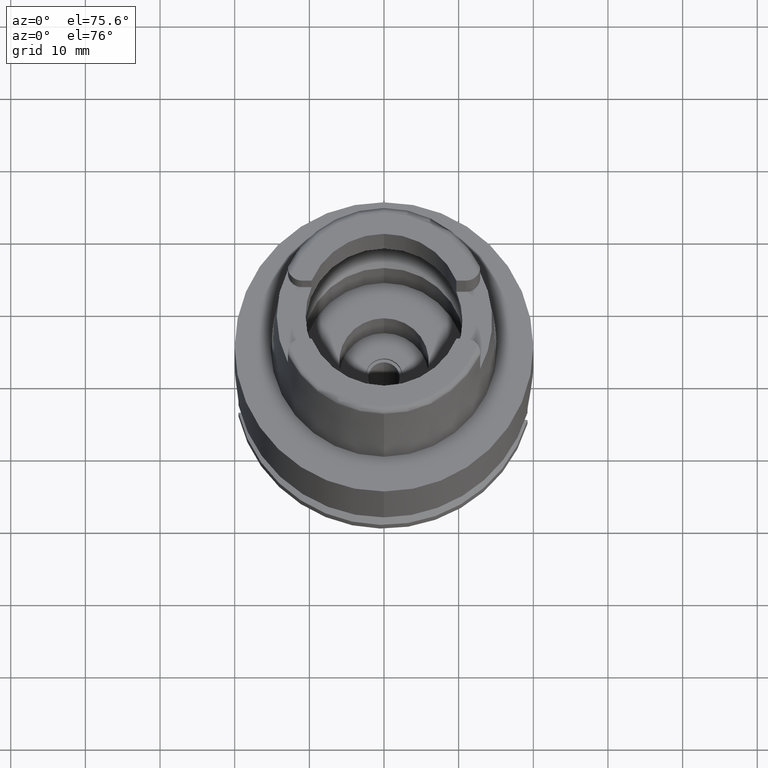
[diagram: clean part render]
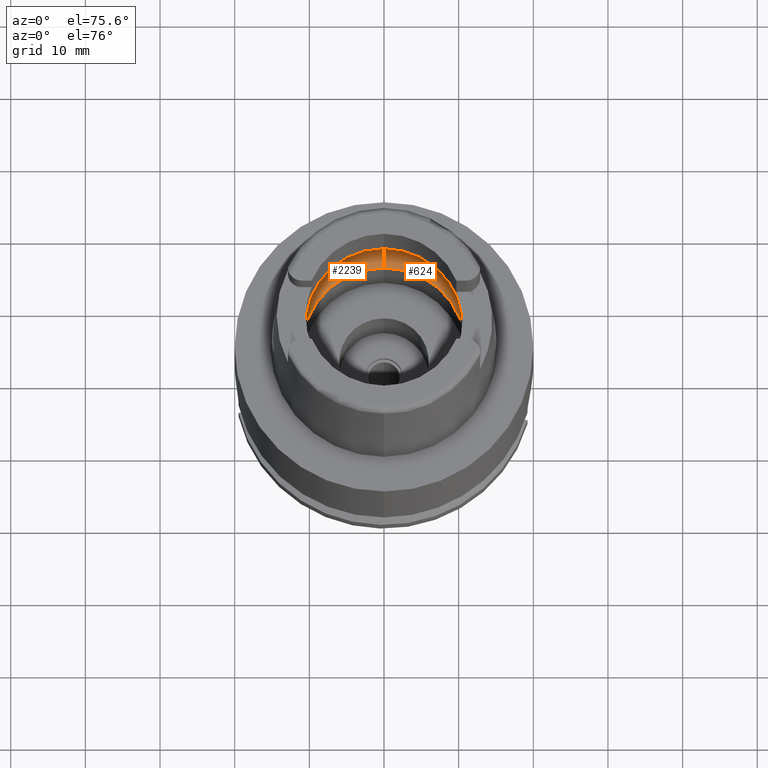
[diagram: same view with one multi-face feature highlighted, each face labeled with its STEP entity id]
A machine part, auxiliary view. The highlighted faces form ONE feature: a constant-radius fillet chain: 2 tangent blend faces with common blend radius 5 mm. The faces share edges in the B-rep.
Their STEP definitions:
[1] entity #2239 (Torus):
#18 = B_SPLINE_CURVE_WITH_KNOTS ( 'NONE', 3,
 ( #147, #3929, #3149, #1025, #3517, #4824 ),
 .UNSPECIFIED., .F., .F.,
 ( 4, 1, 1, 4 ),
 ( 0.0000000000000000000, 0.3333333333333000081, 0.6666666666667000474, 1.000000000000000000 ),
 .UNSPECIFIED. ) ;
#40 = EDGE_CURVE ( 'NONE', #496, #55, #5030, .T. ) ;
#55 = VERTEX_POINT ( 'NONE', #938 ) ;
#147 = CARTESIAN_POINT ( 'NONE',  ( -12.70998420979999999, -1.009356917307000057, 3.933312163512999504 ) ) ;
#292 = DIRECTION ( 'NONE',  ( 0.0000000000000000000, 0.6299999999999791322, -0.7765951326141738997 ) ) ;
#412 = AXIS2_PLACEMENT_3D ( 'NONE', #3992, #1138, #3186 ) ;
#496 = VERTEX_POINT ( 'NONE', #1397 ) ;
#635 = FACE_OUTER_BOUND ( 'NONE', #4242, .T. ) ;
#706 = AXIS2_PLACEMENT_3D ( 'NONE', #3016, #1004, #4270 ) ;
#892 = VERTEX_POINT ( 'NONE', #1711 ) ;
#938 = CARTESIAN_POINT ( 'NONE',  ( 0.0000000000000000000, 12.75000000000000000, 3.933312163512999504 ) ) ;
#977 = CARTESIAN_POINT ( 'NONE',  ( -12.71822750039000027, 0.9055560800185999959, 3.882616508711999703 ) ) ;
#997 = CARTESIAN_POINT ( 'NONE',  ( 0.0000000000000000000, 1.272815980657999902E-14, 3.933312163512999504 ) ) ;
#1004 = DIRECTION ( 'NONE',  ( -1.000000000000000000, 0.0000000000000000000, 0.0000000000000000000 ) ) ;
#1025 = CARTESIAN_POINT ( 'NONE',  ( -12.74221194267000001, -0.3492494412618999955, 3.717724215759000028 ) ) ;
#1138 = DIRECTION ( 'NONE',  ( 0.0000000000000000000, 0.0000000000000000000, -1.000000000000000000 ) ) ;
#1250 = CARTESIAN_POINT ( 'NONE',  ( -12.70998420979999999, -1.009356917307000057, 3.933312163512999504 ) ) ;
#1397 = CARTESIAN_POINT ( 'NONE',  ( -12.70998420979999999, 1.009356917307999923, 3.933312163512999504 ) ) ;
#1484 = ORIENTED_EDGE ( 'NONE', *, *, #2328, .F. ) ;
#1517 = CARTESIAN_POINT ( 'NONE',  ( 0.0000000000000000000, 10.90000000000000036, 0.05033650044222000297 ) ) ;
#1540 = CIRCLE ( 'NONE', #412, 12.75000000000000000 ) ;
#1711 = CARTESIAN_POINT ( 'NONE',  ( 0.0000000000000000000, -12.75000000000000000, 3.933312163512999504 ) ) ;
#1850 = EDGE_CURVE ( 'NONE', #5370, #55, #3768, .T. ) ;
#1871 = ORIENTED_EDGE ( 'NONE', *, *, #40, .F. ) ;
#1900 = AXIS2_PLACEMENT_3D ( 'NONE', #3133, #5007, #4432 ) ;
#2210 = EDGE_CURVE ( 'NONE', #3269, #496, #5254, .T. ) ;
#2239 = ADVANCED_FACE ( 'NONE', ( #635 ), #3117, .F. ) ;
#2253 = CARTESIAN_POINT ( 'NONE',  ( -12.70998420979999999, 1.009356917307999923, 3.933312163512999504 ) ) ;
#2328 = EDGE_CURVE ( 'NONE', #892, #5180, #1540, .T. ) ;
#2345 = CIRCLE ( 'NONE', #706, 5.000000000000000888 ) ;
#2382 = CARTESIAN_POINT ( 'NONE',  ( 0.0000000000000000000, 7.750000000000000000, 3.933312163512999504 ) ) ;
#2515 = CIRCLE ( 'NONE', #4029, 10.90000000000000036 ) ;
#2624 = CARTESIAN_POINT ( 'NONE',  ( 0.0000000000000000000, 1.272815980657999902E-14, 0.05033650044222000297 ) ) ;
#2649 = DIRECTION ( 'NONE',  ( 0.0000000000000000000, 1.000000000000000000, 0.0000000000000000000 ) ) ;
#2897 = VERTEX_POINT ( 'NONE', #4870 ) ;
#3016 = CARTESIAN_POINT ( 'NONE',  ( 0.0000000000000000000, -7.750000000000000000, 3.933312163512999504 ) ) ;
#3049 = CARTESIAN_POINT ( 'NONE',  ( -12.74455357708000136, 0.1165095118199000052, 3.700000000000000178 ) ) ;
#3117 = TOROIDAL_SURFACE ( 'NONE', #1900, 7.750000000000000000, 5.000000000000000000 ) ;
#3133 = CARTESIAN_POINT ( 'NONE',  ( 0.0000000000000000000, 1.272815980657999902E-14, 3.933312163512999504 ) ) ;
#3149 = CARTESIAN_POINT ( 'NONE',  ( -12.73125904559999988, -0.6899170685655999780, 3.796695516230999878 ) ) ;
#3186 = DIRECTION ( 'NONE',  ( 0.0000000000000000000, -1.000000000000000000, 0.0000000000000000000 ) ) ;
#3269 = VERTEX_POINT ( 'NONE', #5369 ) ;
#3441 = CARTESIAN_POINT ( 'NONE',  ( -12.74221162530000129, 0.3492624308046999859, 3.717726546203000026 ) ) ;
#3469 = AXIS2_PLACEMENT_3D ( 'NONE', #997, #4687, #4318 ) ;
#3517 = CARTESIAN_POINT ( 'NONE',  ( -12.74455357708000136, -0.1165037945274000064, 3.700000000000000178 ) ) ;
#3550 = ORIENTED_EDGE ( 'NONE', *, *, #1850, .T. ) ;
#3768 = CIRCLE ( 'NONE', #4813, 5.000000000000000888 ) ;
#3856 = CARTESIAN_POINT ( 'NONE',  ( -12.74455357708000136, 0.0000000000000000000, 3.700000000000000178 ) ) ;
#3929 = CARTESIAN_POINT ( 'NONE',  ( -12.71822740498000215, -0.9055572814202000886, 3.882617095469000024 ) ) ;
#3992 = CARTESIAN_POINT ( 'NONE',  ( 0.0000000000000000000, 1.272815980657999902E-14, 3.933312163512999504 ) ) ;
#4029 = AXIS2_PLACEMENT_3D ( 'NONE', #2624, #4315, #2649 ) ;
#4127 = DIRECTION ( 'NONE',  ( 1.000000000000000000, 0.0000000000000000000, 0.0000000000000000000 ) ) ;
#4242 = EDGE_LOOP ( 'NONE', ( #1484, #4288, #4923, #3550, #1871, #4441, #4921 ) ) ;
#4270 = DIRECTION ( 'NONE',  ( 0.0000000000000000000, -0.6299999999999791322, -0.7765951326141738997 ) ) ;
#4288 = ORIENTED_EDGE ( 'NONE', *, *, #4794, .F. ) ;
#4315 = DIRECTION ( 'NONE',  ( 0.0000000000000000000, 0.0000000000000000000, 1.000000000000000000 ) ) ;
#4318 = DIRECTION ( 'NONE',  ( -0.9968615066513395462, 0.07916524841634305087, 0.0000000000000000000 ) ) ;
#4432 = DIRECTION ( 'NONE',  ( 0.0000000000000000000, -1.000000000000000000, 0.0000000000000000000 ) ) ;
#4441 = ORIENTED_EDGE ( 'NONE', *, *, #2210, .F. ) ;
#4687 = DIRECTION ( 'NONE',  ( 0.0000000000000000000, 0.0000000000000000000, -1.000000000000000000 ) ) ;
#4794 = EDGE_CURVE ( 'NONE', #2897, #892, #2345, .T. ) ;
#4813 = AXIS2_PLACEMENT_3D ( 'NONE', #2382, #4127, #292 ) ;
#4824 = CARTESIAN_POINT ( 'NONE',  ( -12.74455357708000136, 0.0000000000000000000, 3.700000000000000178 ) ) ;
#4870 = CARTESIAN_POINT ( 'NONE',  ( 0.0000000000000000000, -10.90000000000000036, 0.05033650044222000297 ) ) ;
#4921 = ORIENTED_EDGE ( 'NONE', *, *, #5082, .F. ) ;
#4923 = ORIENTED_EDGE ( 'NONE', *, *, #5056, .F. ) ;
#5007 = DIRECTION ( 'NONE',  ( 0.0000000000000000000, 0.0000000000000000000, -1.000000000000000000 ) ) ;
#5030 = CIRCLE ( 'NONE', #3469, 12.75000000000000533 ) ;
#5056 = EDGE_CURVE ( 'NONE', #5370, #2897, #2515, .T. ) ;
#5082 = EDGE_CURVE ( 'NONE', #5180, #3269, #18, .T. ) ;
#5180 = VERTEX_POINT ( 'NONE', #1250 ) ;
#5187 = CARTESIAN_POINT ( 'NONE',  ( -12.73125908545999962, 0.6899141010797000817, 3.796695173512999677 ) ) ;
#5254 = B_SPLINE_CURVE_WITH_KNOTS ( 'NONE', 3,
 ( #3856, #3049, #3441, #5187, #977, #2253 ),
 .UNSPECIFIED., .F., .F.,
 ( 4, 1, 1, 4 ),
 ( 0.0000000000000000000, 0.3333333333333000081, 0.6666666666667000474, 1.000000000000000000 ),
 .UNSPECIFIED. ) ;
#5369 = CARTESIAN_POINT ( 'NONE',  ( -12.74455357708000136, 0.0000000000000000000, 3.700000000000000178 ) ) ;
#5370 = VERTEX_POINT ( 'NONE', #1517 ) ;
[2] entity #624 (Torus):
#55 = VERTEX_POINT ( 'NONE', #938 ) ;
#71 = ORIENTED_EDGE ( 'NONE', *, *, #1999, .F. ) ;
#292 = DIRECTION ( 'NONE',  ( 0.0000000000000000000, 0.6299999999999791322, -0.7765951326141738997 ) ) ;
#335 = AXIS2_PLACEMENT_3D ( 'NONE', #1221, #3358, #4245 ) ;
#402 = ORIENTED_EDGE ( 'NONE', *, *, #3010, .F. ) ;
#528 = CARTESIAN_POINT ( 'NONE',  ( 0.0000000000000000000, 1.272815980657999902E-14, 3.933312163512999504 ) ) ;
#593 = VERTEX_POINT ( 'NONE', #4312 ) ;
#624 = ADVANCED_FACE ( 'NONE', ( #2240 ), #2045, .F. ) ;
#706 = AXIS2_PLACEMENT_3D ( 'NONE', #3016, #1004, #4270 ) ;
#740 = EDGE_LOOP ( 'NONE', ( #402, #3317, #1344, #3692, #1337, #1874, #71 ) ) ;
#831 = AXIS2_PLACEMENT_3D ( 'NONE', #2559, #1281, #2945 ) ;
#864 = CARTESIAN_POINT ( 'NONE',  ( 12.74221191776999973, -0.3492506651152000319, 3.717724400314000199 ) ) ;
#892 = VERTEX_POINT ( 'NONE', #1711 ) ;
#917 = CARTESIAN_POINT ( 'NONE',  ( 12.70998420979999999, -1.009356917307999923, 3.933312163512999504 ) ) ;
#921 = CARTESIAN_POINT ( 'NONE',  ( 12.71822738654000062, -0.9055575135700999478, 3.882617208849000079 ) ) ;
#938 = CARTESIAN_POINT ( 'NONE',  ( 0.0000000000000000000, 12.75000000000000000, 3.933312163512999504 ) ) ;
#1004 = DIRECTION ( 'NONE',  ( -1.000000000000000000, 0.0000000000000000000, 0.0000000000000000000 ) ) ;
#1221 = CARTESIAN_POINT ( 'NONE',  ( 0.0000000000000000000, 1.272815980657999902E-14, 0.05033650044222000297 ) ) ;
#1228 = CARTESIAN_POINT ( 'NONE',  ( 12.70998420979999999, 1.009356917307000057, 3.933312163512999504 ) ) ;
#1244 = CARTESIAN_POINT ( 'NONE',  ( 12.70998420979999999, -1.009356917307999923, 3.933312163512999504 ) ) ;
#1251 = CARTESIAN_POINT ( 'NONE',  ( 12.71822751822999997, 0.9055558553350999684, 3.882616398978000039 ) ) ;
#1281 = DIRECTION ( 'NONE',  ( 0.0000000000000000000, 0.0000000000000000000, -1.000000000000000000 ) ) ;
#1337 = ORIENTED_EDGE ( 'NONE', *, *, #4794, .T. ) ;
#1344 = ORIENTED_EDGE ( 'NONE', *, *, #1850, .F. ) ;
#1489 = VERTEX_POINT ( 'NONE', #917 ) ;
#1517 = CARTESIAN_POINT ( 'NONE',  ( 0.0000000000000000000, 10.90000000000000036, 0.05033650044222000297 ) ) ;
#1711 = CARTESIAN_POINT ( 'NONE',  ( 0.0000000000000000000, -12.75000000000000000, 3.933312163512999504 ) ) ;
#1743 = CARTESIAN_POINT ( 'NONE',  ( 12.74455357708000136, 0.1165089222837000088, 3.700000000000000178 ) ) ;
#1850 = EDGE_CURVE ( 'NONE', #5370, #55, #3768, .T. ) ;
#1874 = ORIENTED_EDGE ( 'NONE', *, *, #3045, .F. ) ;
#1999 = EDGE_CURVE ( 'NONE', #593, #1489, #4146, .T. ) ;
#2045 = TOROIDAL_SURFACE ( 'NONE', #831, 7.750000000000000000, 5.000000000000000000 ) ;
#2156 = CARTESIAN_POINT ( 'NONE',  ( 12.74455357708000136, 0.0000000000000000000, 3.700000000000000178 ) ) ;
#2158 = CIRCLE ( 'NONE', #3740, 12.75000000000000533 ) ;
#2240 = FACE_OUTER_BOUND ( 'NONE', #740, .T. ) ;
#2345 = CIRCLE ( 'NONE', #706, 5.000000000000000888 ) ;
#2382 = CARTESIAN_POINT ( 'NONE',  ( 0.0000000000000000000, 7.750000000000000000, 3.933312163512999504 ) ) ;
#2559 = CARTESIAN_POINT ( 'NONE',  ( 0.0000000000000000000, 1.272815980657999902E-14, 3.933312163512999504 ) ) ;
#2688 = CIRCLE ( 'NONE', #335, 10.90000000000000036 ) ;
#2897 = VERTEX_POINT ( 'NONE', #4870 ) ;
#2916 = CARTESIAN_POINT ( 'NONE',  ( 12.73125911752999961, 0.6899135440065999880, 3.796694954122000087 ) ) ;
#2941 = DIRECTION ( 'NONE',  ( 0.0000000000000000000, 1.000000000000000000, 0.0000000000000000000 ) ) ;
#2945 = DIRECTION ( 'NONE',  ( 0.0000000000000000000, -1.000000000000000000, 0.0000000000000000000 ) ) ;
#3010 = EDGE_CURVE ( 'NONE', #3966, #593, #3069, .T. ) ;
#3016 = CARTESIAN_POINT ( 'NONE',  ( 0.0000000000000000000, -7.750000000000000000, 3.933312163512999504 ) ) ;
#3027 = CARTESIAN_POINT ( 'NONE',  ( 12.74221165338000006, 0.3492610745713000120, 3.717726338375999973 ) ) ;
#3036 = CIRCLE ( 'NONE', #3486, 12.75000000000000000 ) ;
#3045 = EDGE_CURVE ( 'NONE', #1489, #892, #2158, .T. ) ;
#3069 = B_SPLINE_CURVE_WITH_KNOTS ( 'NONE', 3,
 ( #5085, #1251, #2916, #3027, #1743, #2156 ),
 .UNSPECIFIED., .F., .F.,
 ( 4, 1, 1, 4 ),
 ( 0.0000000000000000000, 0.3333333333333000081, 0.6666666666667000474, 1.000000000000000000 ),
 .UNSPECIFIED. ) ;
#3317 = ORIENTED_EDGE ( 'NONE', *, *, #3569, .F. ) ;
#3358 = DIRECTION ( 'NONE',  ( 0.0000000000000000000, 0.0000000000000000000, 1.000000000000000000 ) ) ;
#3446 = DIRECTION ( 'NONE',  ( 0.0000000000000000000, 0.0000000000000000000, -1.000000000000000000 ) ) ;
#3486 = AXIS2_PLACEMENT_3D ( 'NONE', #4566, #3446, #2941 ) ;
#3569 = EDGE_CURVE ( 'NONE', #55, #3966, #3036, .T. ) ;
#3691 = EDGE_CURVE ( 'NONE', #2897, #5370, #2688, .T. ) ;
#3692 = ORIENTED_EDGE ( 'NONE', *, *, #3691, .F. ) ;
#3740 = AXIS2_PLACEMENT_3D ( 'NONE', #528, #4706, #4223 ) ;
#3768 = CIRCLE ( 'NONE', #4813, 5.000000000000000888 ) ;
#3826 = CARTESIAN_POINT ( 'NONE',  ( 12.74455357708000136, 0.0000000000000000000, 3.700000000000000178 ) ) ;
#3966 = VERTEX_POINT ( 'NONE', #1228 ) ;
#4127 = DIRECTION ( 'NONE',  ( 1.000000000000000000, 0.0000000000000000000, 0.0000000000000000000 ) ) ;
#4146 = B_SPLINE_CURVE_WITH_KNOTS ( 'NONE', 3,
 ( #3826, #4668, #864, #4994, #921, #1244 ),
 .UNSPECIFIED., .F., .F.,
 ( 4, 1, 1, 4 ),
 ( 0.0000000000000000000, 0.3333333333333000081, 0.6666666666667000474, 1.000000000000000000 ),
 .UNSPECIFIED. ) ;
#4223 = DIRECTION ( 'NONE',  ( 0.9968615066513395462, -0.07916524841634305087, 0.0000000000000000000 ) ) ;
#4245 = DIRECTION ( 'NONE',  ( 0.0000000000000000000, -1.000000000000000000, 0.0000000000000000000 ) ) ;
#4270 = DIRECTION ( 'NONE',  ( 0.0000000000000000000, -0.6299999999999791322, -0.7765951326141738997 ) ) ;
#4312 = CARTESIAN_POINT ( 'NONE',  ( 12.74455357708000136, 0.0000000000000000000, 3.700000000000000178 ) ) ;
#4566 = CARTESIAN_POINT ( 'NONE',  ( 0.0000000000000000000, 1.272815980657999902E-14, 3.933312163512999504 ) ) ;
#4668 = CARTESIAN_POINT ( 'NONE',  ( 12.74455357708000136, -0.1165043258977000035, 3.700000000000000178 ) ) ;
#4706 = DIRECTION ( 'NONE',  ( 0.0000000000000000000, 0.0000000000000000000, -1.000000000000000000 ) ) ;
#4794 = EDGE_CURVE ( 'NONE', #2897, #892, #2345, .T. ) ;
#4813 = AXIS2_PLACEMENT_3D ( 'NONE', #2382, #4127, #292 ) ;
#4870 = CARTESIAN_POINT ( 'NONE',  ( 0.0000000000000000000, -10.90000000000000036, 0.05033650044222000297 ) ) ;
#4994 = CARTESIAN_POINT ( 'NONE',  ( 12.73125901363000168, -0.6899176440522000187, 3.796695735634000091 ) ) ;
#5085 = CARTESIAN_POINT ( 'NONE',  ( 12.70998420979999999, 1.009356917307000057, 3.933312163512999504 ) ) ;
#5370 = VERTEX_POINT ( 'NONE', #1517 ) ;